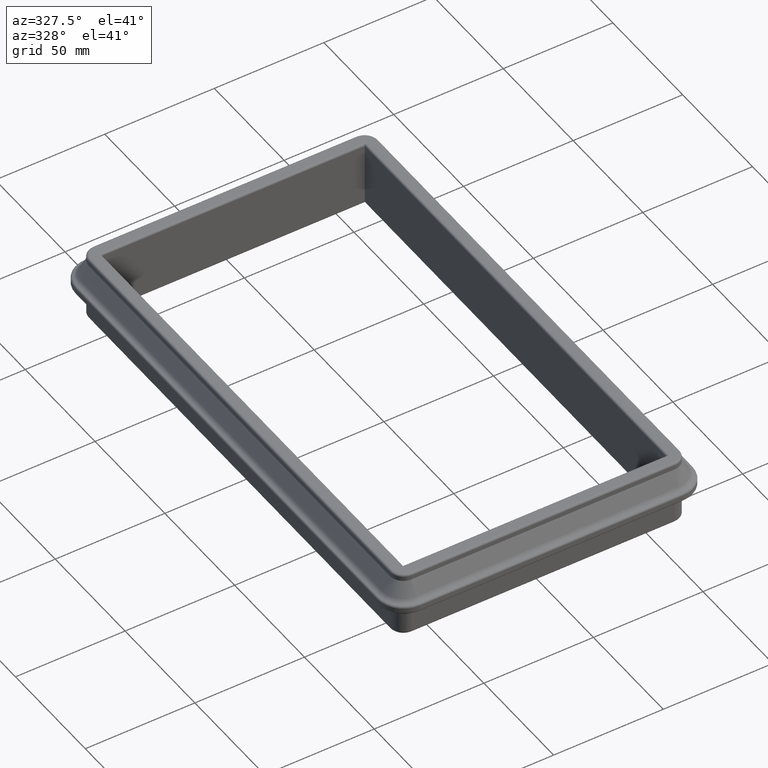
[diagram: clean part render]
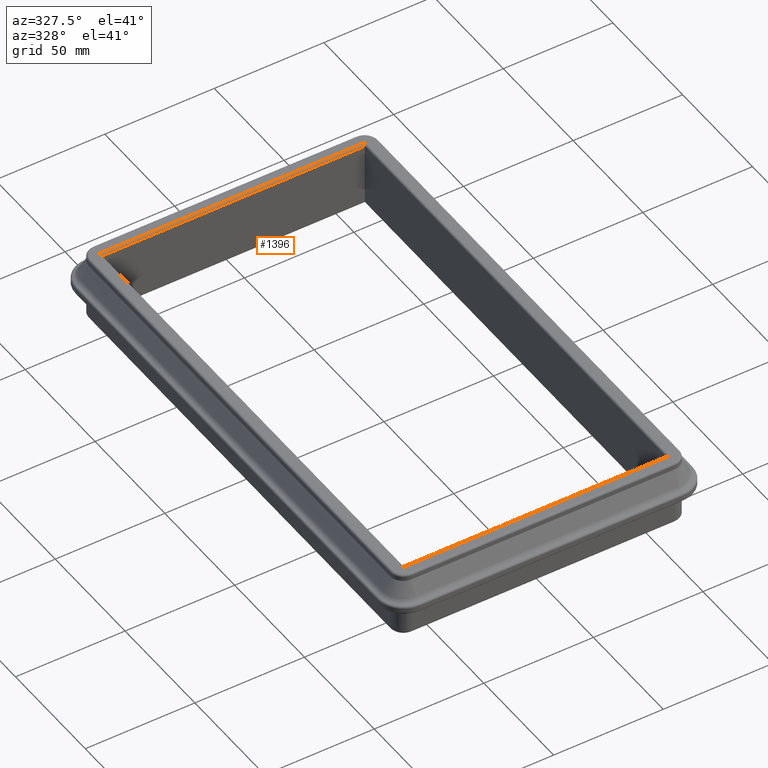
[diagram: same view with one face highlighted and labeled with its STEP entity id]
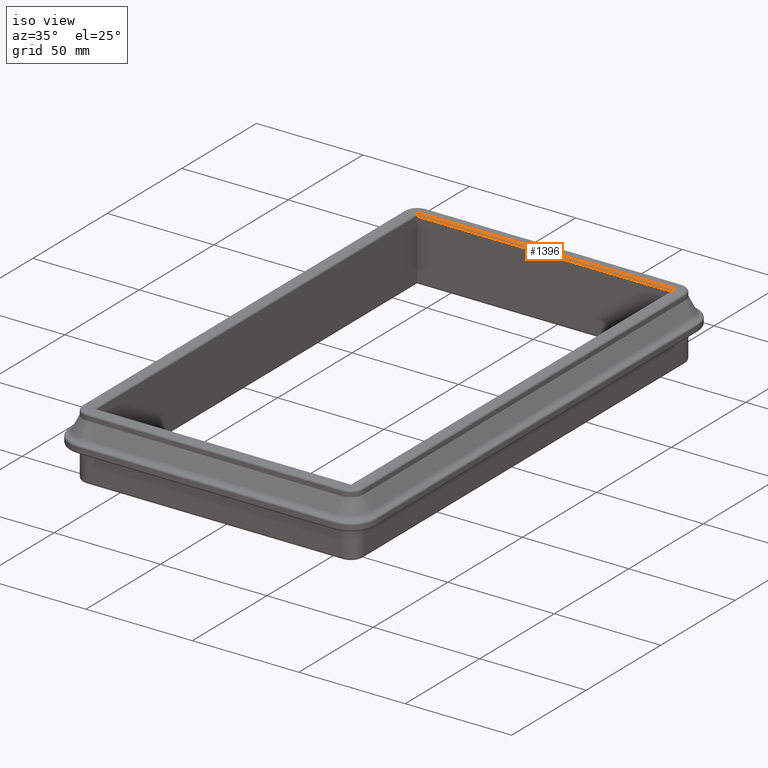
[diagram: same view with one face highlighted and labeled with its STEP entity id]
A machine part, auxiliary view. The second image highlights one B-rep face of the part: STEP entity #1396.
A second angle (iso view) of the same face is appended — the face is thin or edge-on in the first view.
In plain terms, the highlighted cylindrical surface (edge-blend (fillet) strip) has radius 1 mm, axis along (1, 0, 0).
Its self-contained STEP definition (entity closure, byte-faithful):
#15=ELLIPSE('',#1592,1.41421356237306,1.);
#17=ELLIPSE('',#1595,1.41421356237306,1.);
#139=FACE_OUTER_BOUND('',#236,.T.);
#236=EDGE_LOOP('',(#1150,#1151,#1152,#1153));
#335=LINE('',#2443,#435);
#339=LINE('',#2455,#439);
#435=VECTOR('',#1999,10.);
#439=VECTOR('',#2011,10.);
#650=VERTEX_POINT('',#2439);
#652=VERTEX_POINT('',#2442);
#655=VERTEX_POINT('',#2449);
#656=VERTEX_POINT('',#2454);
#824=EDGE_CURVE('',#652,#650,#335,.T.);
#828=EDGE_CURVE('',#655,#650,#15,.T.);
#830=EDGE_CURVE('',#655,#656,#339,.T.);
#831=EDGE_CURVE('',#656,#652,#17,.T.);
#1150=ORIENTED_EDGE('',*,*,#824,.T.);
#1151=ORIENTED_EDGE('',*,*,#828,.F.);
#1152=ORIENTED_EDGE('',*,*,#830,.T.);
#1153=ORIENTED_EDGE('',*,*,#831,.T.);
#1318=CYLINDRICAL_SURFACE('',#1594,1.);
#1396=ADVANCED_FACE('',(#139),#1318,.T.);
#1592=AXIS2_PLACEMENT_3D('',#2451,#2005,#2006);
#1594=AXIS2_PLACEMENT_3D('',#2453,#2009,#2010);
#1595=AXIS2_PLACEMENT_3D('',#2456,#2012,#2013);
#1999=DIRECTION('',(-1.,-1.48029736616688E-16,0.));
#2005=DIRECTION('center_axis',(-0.707106781186529,-0.707106781186566,0.));
#2006=DIRECTION('ref_axis',(0.707106781186566,-0.707106781186529,0.));
#2009=DIRECTION('center_axis',(1.,1.48029736616688E-16,0.));
#2010=DIRECTION('ref_axis',(0.,-0.707106781186541,0.707106781186554));
#2011=DIRECTION('',(1.,1.48029736616688E-16,0.));
#2012=DIRECTION('center_axis',(-0.707106781186566,0.707106781186529,0.));
#2013=DIRECTION('ref_axis',(-0.707106781186529,-0.707106781186566,0.));
#2439=CARTESIAN_POINT('',(-61.,109.,15.));
#2442=CARTESIAN_POINT('',(60.9999999999999,109.,15.));
#2443=CARTESIAN_POINT('',(-63.,109.,15.));
#2449=CARTESIAN_POINT('',(-60.,108.,14.));
#2451=CARTESIAN_POINT('Origin',(-61.,109.,14.));
#2453=CARTESIAN_POINT('Origin',(-63.,109.,14.));
#2454=CARTESIAN_POINT('',(60.,108.,14.));
#2455=CARTESIAN_POINT('',(-63.,108.,14.));
#2456=CARTESIAN_POINT('Origin',(60.9999999999999,109.,14.));